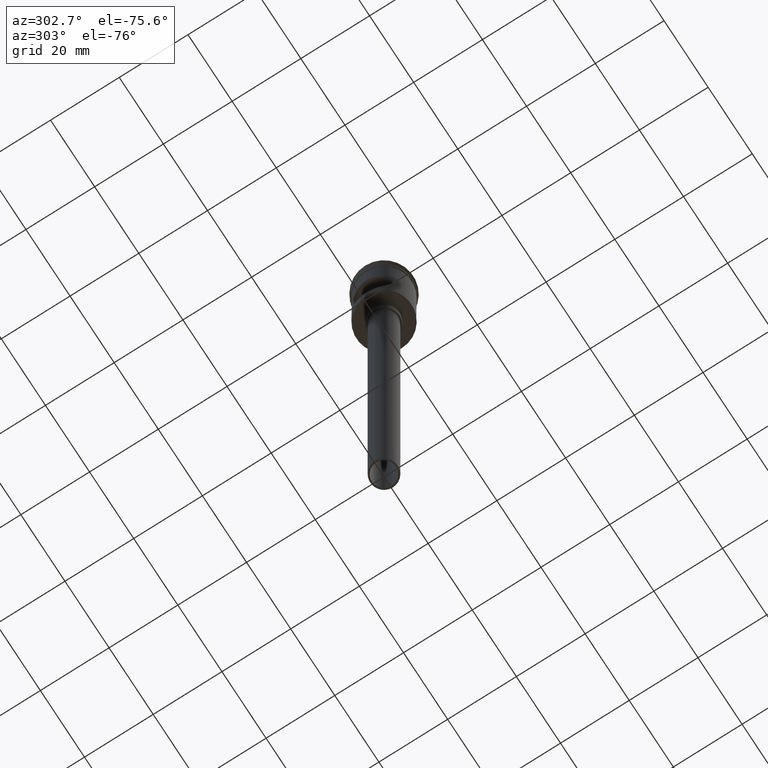
[diagram: clean part render]
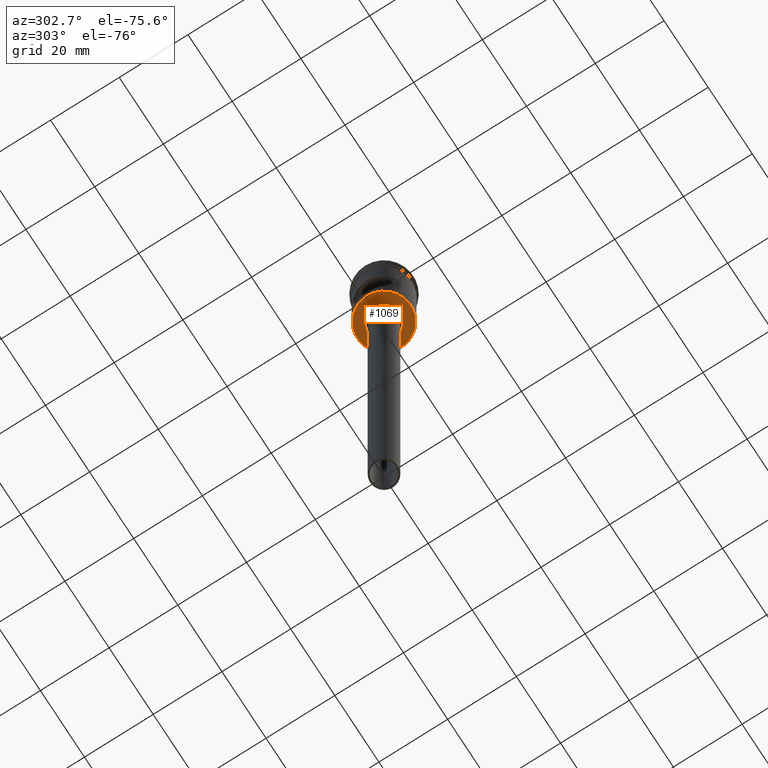
[diagram: same view with one face highlighted and labeled with its STEP entity id]
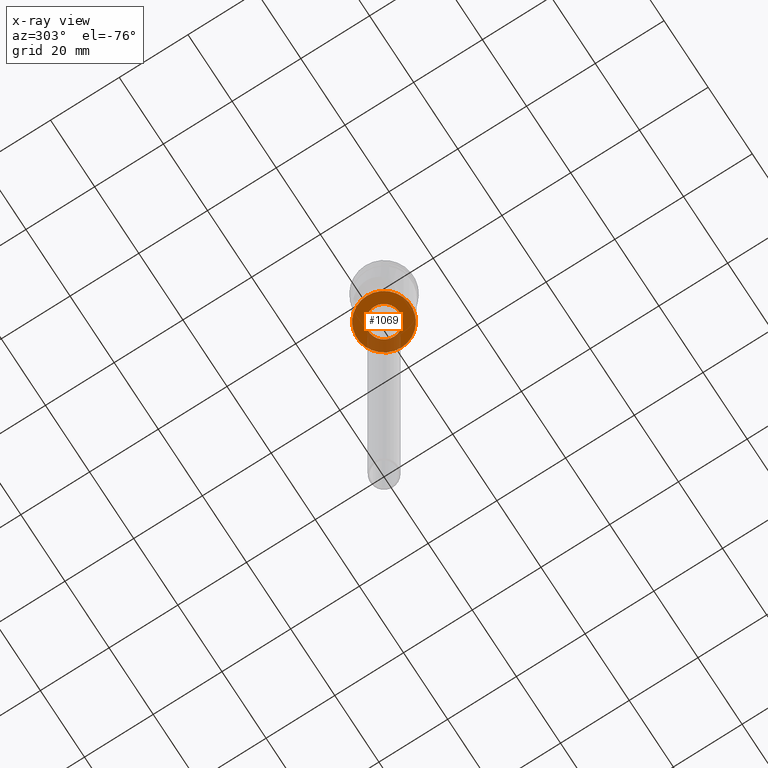
[diagram: x-ray of the same camera — body ghosted, the highlighted face saturated]
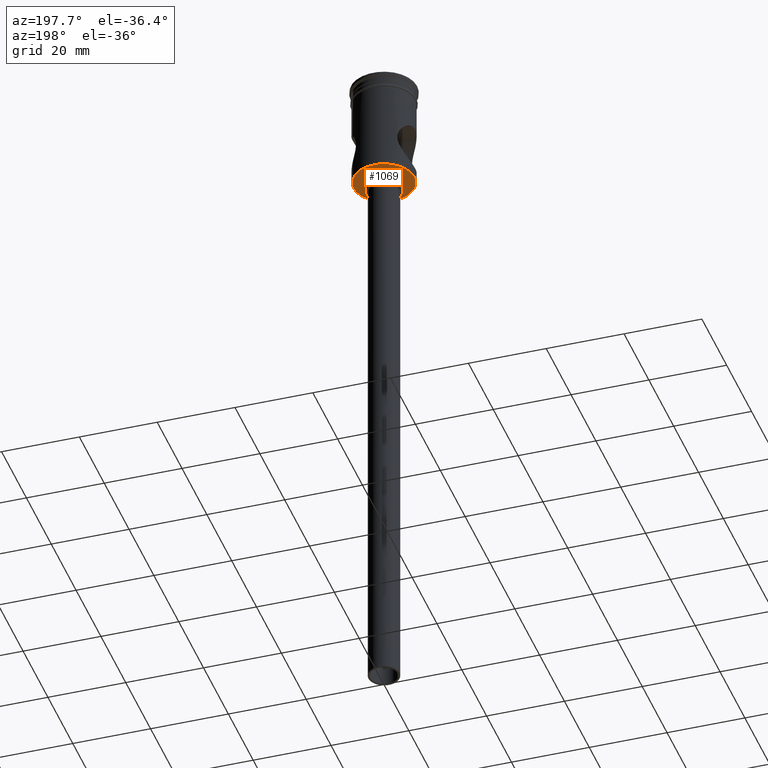
[diagram: same view with one face highlighted and labeled with its STEP entity id]
A machine part, auxiliary view. The second image highlights one B-rep face of the part: STEP entity #1069.
The next image is the same camera in x-ray: the body ghosted, the highlighted face saturated — about 23% of this face is hidden behind the body in this view.
A second angle (auxiliary view) of the same face is appended — the face is thin or edge-on in the first view.
In plain terms, the highlighted planar face has unit normal (0, 0, -1).
Its self-contained STEP definition (entity closure, byte-faithful):
#9 = EDGE_CURVE ( 'NONE', #429, #1192, #28, .T. ) ;
#20 = DIRECTION ( 'NONE',  ( -1.000000000000000000, 0.000000000000000000, 0.000000000000000000 ) ) ;
#27 = CARTESIAN_POINT ( 'NONE',  ( 7.799999999999987388, 0.000000000000000000, -27.50000000000000000 ) ) ;
#28 = CIRCLE ( 'NONE', #199, 4.500000000000000000 ) ;
#79 = DIRECTION ( 'NONE',  ( 0.000000000000000000, 0.000000000000000000, -1.000000000000000000 ) ) ;
#174 = AXIS2_PLACEMENT_3D ( 'NONE', #478, #493, #362 ) ;
#183 = CARTESIAN_POINT ( 'NONE',  ( 0.000000000000000000, 0.000000000000000000, -27.50000000000000000 ) ) ;
#185 = PLANE ( 'NONE',  #380 ) ;
#199 = AXIS2_PLACEMENT_3D ( 'NONE', #183, #280, #663 ) ;
#251 = DIRECTION ( 'NONE',  ( 0.000000000000000000, 0.000000000000000000, -1.000000000000000000 ) ) ;
#274 = FACE_OUTER_BOUND ( 'NONE', #908, .T. ) ;
#280 = DIRECTION ( 'NONE',  ( 0.000000000000000000, 0.000000000000000000, -1.000000000000000000 ) ) ;
#359 = ORIENTED_EDGE ( 'NONE', *, *, #1500, .F. ) ;
#362 = DIRECTION ( 'NONE',  ( -1.000000000000000000, 0.000000000000000000, 0.000000000000000000 ) ) ;
#377 = CIRCLE ( 'NONE', #174, 7.799999999999987388 ) ;
#380 = AXIS2_PLACEMENT_3D ( 'NONE', #796, #79, #665 ) ;
#395 = CARTESIAN_POINT ( 'NONE',  ( -7.799999999999987388, 9.674709713264080254E-16, -27.50000000000000000 ) ) ;
#413 = EDGE_CURVE ( 'NONE', #1203, #972, #1264, .T. ) ;
#429 = VERTEX_POINT ( 'NONE', #1322 ) ;
#476 = AXIS2_PLACEMENT_3D ( 'NONE', #1199, #251, #20 ) ;
#478 = CARTESIAN_POINT ( 'NONE',  ( 0.000000000000000000, 0.000000000000000000, -27.50000000000000000 ) ) ;
#491 = DIRECTION ( 'NONE',  ( 0.000000000000000000, 0.000000000000000000, -1.000000000000000000 ) ) ;
#493 = DIRECTION ( 'NONE',  ( 0.000000000000000000, 0.000000000000000000, -1.000000000000000000 ) ) ;
#513 = EDGE_CURVE ( 'NONE', #972, #1203, #377, .T. ) ;
#622 = CARTESIAN_POINT ( 'NONE',  ( 4.500000000000000000, 0.000000000000000000, -27.50000000000000000 ) ) ;
#648 = ORIENTED_EDGE ( 'NONE', *, *, #513, .T. ) ;
#663 = DIRECTION ( 'NONE',  ( -1.000000000000000000, 0.000000000000000000, 0.000000000000000000 ) ) ;
#665 = DIRECTION ( 'NONE',  ( -1.000000000000000000, 0.000000000000000000, -0.000000000000000000 ) ) ;
#705 = AXIS2_PLACEMENT_3D ( 'NONE', #1063, #491, #1162 ) ;
#796 = CARTESIAN_POINT ( 'NONE',  ( 0.000000000000000000, 7.999999999999992895, -27.50000000000000000 ) ) ;
#862 = FACE_BOUND ( 'NONE', #1370, .T. ) ;
#908 = EDGE_LOOP ( 'NONE', ( #1354, #648 ) ) ;
#955 = ORIENTED_EDGE ( 'NONE', *, *, #9, .F. ) ;
#972 = VERTEX_POINT ( 'NONE', #395 ) ;
#1063 = CARTESIAN_POINT ( 'NONE',  ( 0.000000000000000000, 0.000000000000000000, -27.50000000000000000 ) ) ;
#1069 = ADVANCED_FACE ( 'NONE', ( #274, #862 ), #185, .T. ) ;
#1162 = DIRECTION ( 'NONE',  ( -1.000000000000000000, 0.000000000000000000, 0.000000000000000000 ) ) ;
#1192 = VERTEX_POINT ( 'NONE', #622 ) ;
#1199 = CARTESIAN_POINT ( 'NONE',  ( 0.000000000000000000, 0.000000000000000000, -27.50000000000000000 ) ) ;
#1203 = VERTEX_POINT ( 'NONE', #27 ) ;
#1264 = CIRCLE ( 'NONE', #476, 7.799999999999987388 ) ;
#1322 = CARTESIAN_POINT ( 'NONE',  ( -4.500000000000000000, 5.510910596163088569E-16, -27.50000000000000000 ) ) ;
#1354 = ORIENTED_EDGE ( 'NONE', *, *, #413, .T. ) ;
#1368 = CIRCLE ( 'NONE', #705, 4.500000000000000000 ) ;
#1370 = EDGE_LOOP ( 'NONE', ( #359, #955 ) ) ;
#1500 = EDGE_CURVE ( 'NONE', #1192, #429, #1368, .T. ) ;